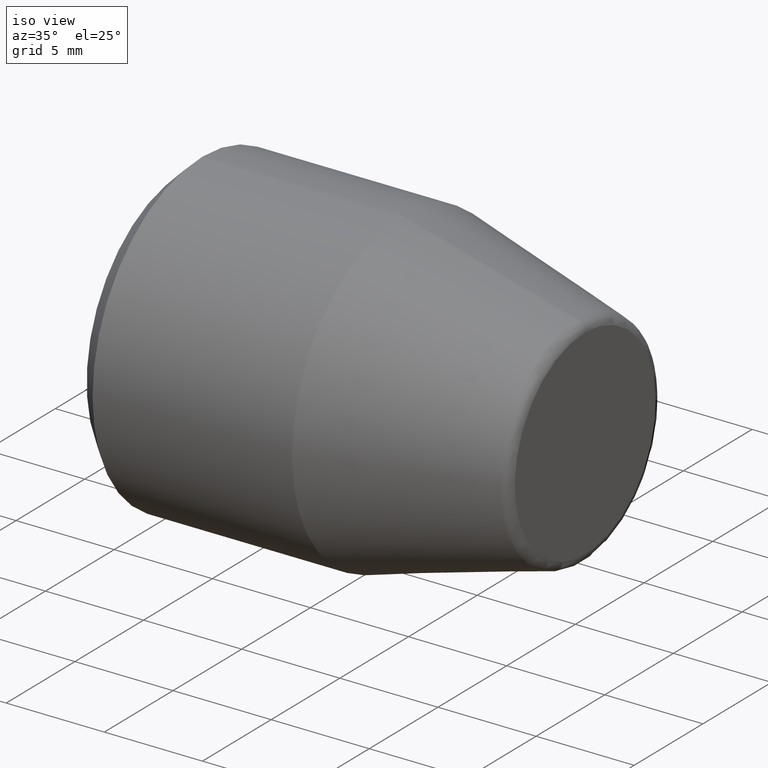
[diagram: clean part render]
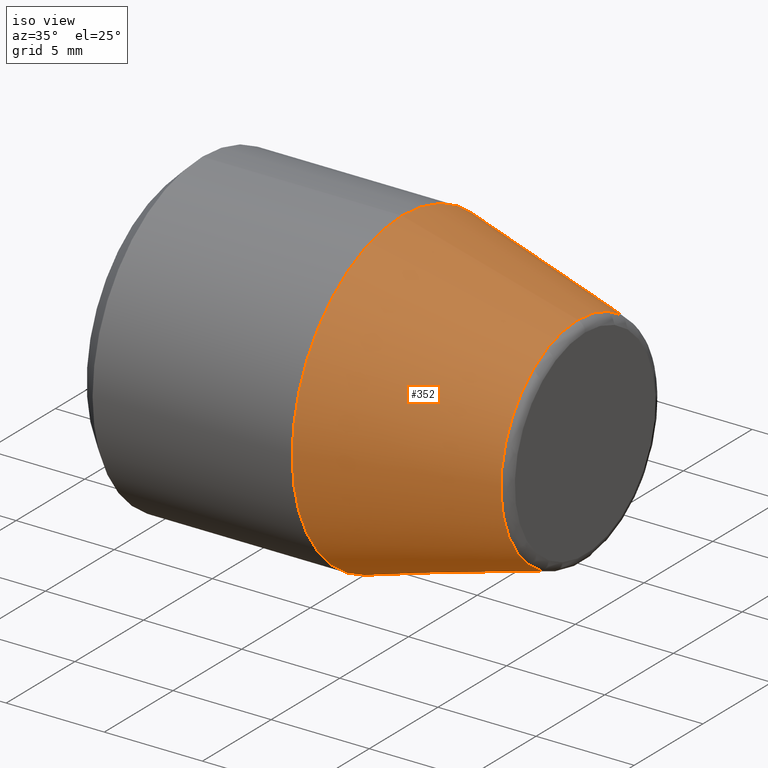
[diagram: same view with one face highlighted and labeled with its STEP entity id]
A machine part, iso view. The second image highlights one B-rep face of the part: STEP entity #352.
In plain terms, the highlighted conical surface has half-angle 15 deg.
Its self-contained STEP definition (entity closure, byte-faithful):
#20 = DIRECTION ( 'NONE',  ( 0.0000000000000000000, 0.0000000000000000000, 1.000000000000000000 ) ) ;
#46 = CARTESIAN_POINT ( 'NONE',  ( 20.12940952255125600, 0.0000000000000000000, 5.599299419155053100 ) ) ;
#61 = FACE_BOUND ( 'NONE', #214, .T. ) ;
#97 = CIRCLE ( 'NONE', #557, 8.000000000000000000 ) ;
#185 = AXIS2_PLACEMENT_3D ( 'NONE', #288, #593, #334 ) ;
#189 = EDGE_CURVE ( 'NONE', #394, #394, #97, .T. ) ;
#206 = ORIENTED_EDGE ( 'NONE', *, *, #189, .F. ) ;
#209 = DIRECTION ( 'NONE',  ( -1.000000000000000000, -0.0000000000000000000, -0.0000000000000000000 ) ) ;
#214 = EDGE_LOOP ( 'NONE', ( #561 ) ) ;
#244 = FACE_OUTER_BOUND ( 'NONE', #560, .T. ) ;
#251 = VERTEX_POINT ( 'NONE', #46 ) ;
#288 = CARTESIAN_POINT ( 'NONE',  ( 20.12940952255125600, 0.0000000000000000000, 0.0000000000000000000 ) ) ;
#329 = DIRECTION ( 'NONE',  ( 0.0000000000000000000, 0.0000000000000000000, 1.000000000000000000 ) ) ;
#334 = DIRECTION ( 'NONE',  ( 0.0000000000000000000, 0.0000000000000000000, 1.000000000000000000 ) ) ;
#352 = ADVANCED_FACE ( 'NONE', ( #244, #61 ), #413, .T. ) ;
#359 = CARTESIAN_POINT ( 'NONE',  ( 20.12940952255125600, 0.0000000000000000000, 0.0000000000000000000 ) ) ;
#394 = VERTEX_POINT ( 'NONE', #431 ) ;
#413 = CONICAL_SURFACE ( 'NONE', #461, 5.599299419155053100, 0.2617993877991426900 ) ;
#431 = CARTESIAN_POINT ( 'NONE',  ( 11.16987298107755700, 0.0000000000000000000, 8.000000000000000000 ) ) ;
#461 = AXIS2_PLACEMENT_3D ( 'NONE', #359, #209, #20 ) ;
#535 = DIRECTION ( 'NONE',  ( -1.000000000000000000, -0.0000000000000000000, -0.0000000000000000000 ) ) ;
#539 = CIRCLE ( 'NONE', #185, 5.599299419155053100 ) ;
#541 = EDGE_CURVE ( 'NONE', #251, #251, #539, .T. ) ;
#557 = AXIS2_PLACEMENT_3D ( 'NONE', #622, #535, #329 ) ;
#560 = EDGE_LOOP ( 'NONE', ( #206 ) ) ;
#561 = ORIENTED_EDGE ( 'NONE', *, *, #541, .T. ) ;
#593 = DIRECTION ( 'NONE',  ( -1.000000000000000000, -0.0000000000000000000, -0.0000000000000000000 ) ) ;
#622 = CARTESIAN_POINT ( 'NONE',  ( 11.16987298107755700, 0.0000000000000000000, 0.0000000000000000000 ) ) ;